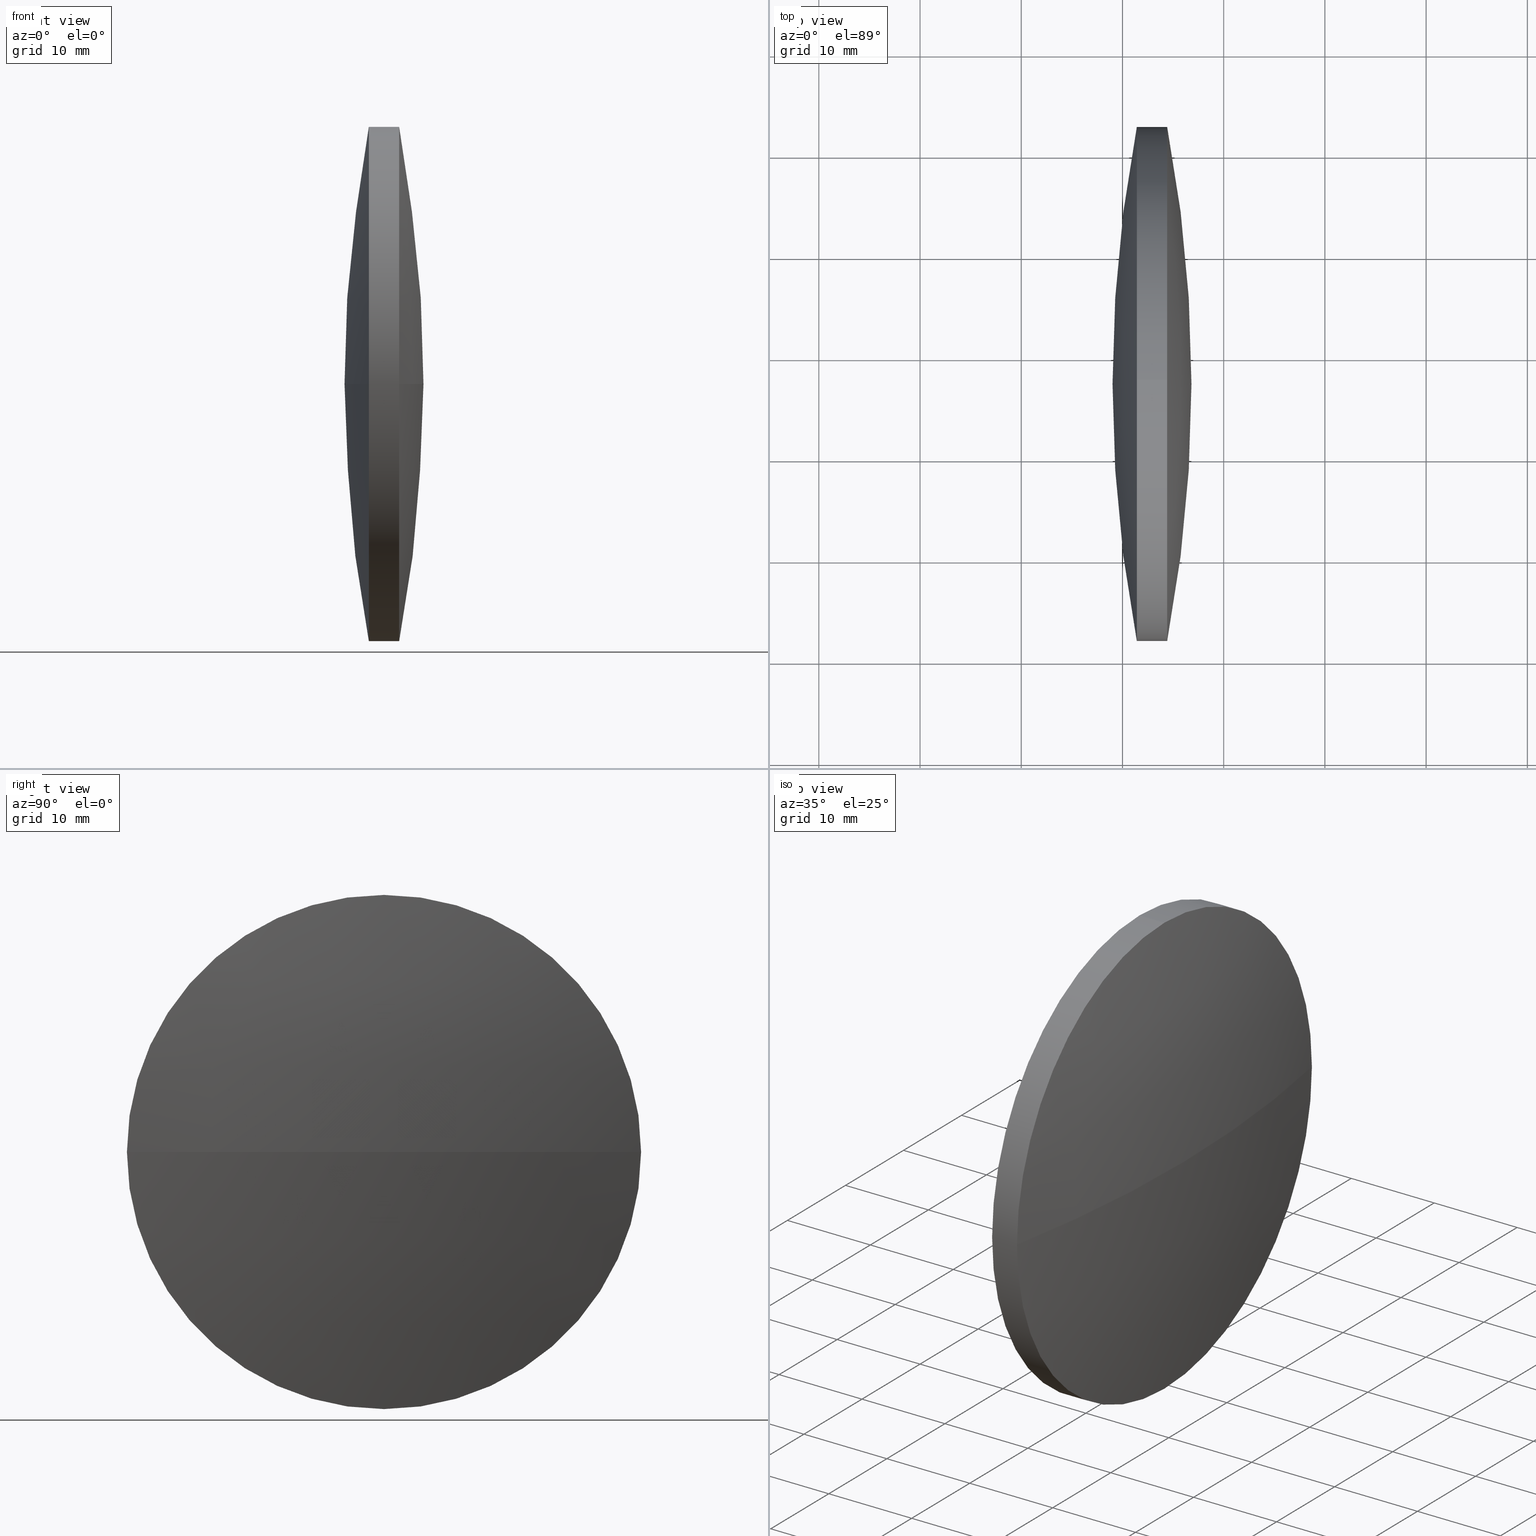
[diagram: canonical four-view strip — front | top / right | iso, engineering-drawing reading convention]
A machine part, canonical four-view strip (front | top / right | iso — engineering-drawing reading convention). The complete STEP part file that produces these views, byte-faithful:
ISO-10303-21;
HEADER;
FILE_DESCRIPTION (( 'STEP AP203' ),
    '1' );
FILE_NAME ('110106.STEP',
    '2019-07-08T08:06:27',
    ( '' ),
    ( '' ),
    'SwSTEP 2.0',
    'SolidWorks 2016',
    '' );
FILE_SCHEMA (( 'CONFIG_CONTROL_DESIGN' ));
ENDSEC;

DATA;
#1 = DIRECTION ( 'NONE',  ( 0.0000000000000000000, 1.000000000000000000, 1.224646799147353200E-016 ) ) ;
#2 = AXIS2_PLACEMENT_3D ( 'NONE', #140, #159, #9 ) ;
#3 = ORIENTED_EDGE ( 'NONE', *, *, #184, .T. ) ;
#4 = CARTESIAN_POINT ( 'NONE',  ( 174.4163664064679400, 71.83222604636907200, -3.110602869834221600E-015 ) ) ;
#5 = CARTESIAN_POINT ( 'NONE',  ( 171.4164086921822200, 97.23222604636956100, 25.39999999999999100 ) ) ;
#6 = PRODUCT_DEFINITION ( 'δ֪', '', #316, #266 ) ;
#7 = CARTESIAN_POINT ( 'NONE',  ( 171.4164086921822200, 97.23222604636956100, 0.0000000000000000000 ) ) ;
#8 = CARTESIAN_POINT ( 'NONE',  ( 171.4164086921822200, 97.23222604636956100, -25.39999999999999100 ) ) ;
#9 = DIRECTION ( 'NONE',  ( 0.0000000000000000000, 0.0000000000000000000, 1.000000000000000000 ) ) ;
#10 = PERSON_AND_ORGANIZATION ( #208, #338 ) ;
#11 = EDGE_CURVE ( 'NONE', #256, #63, #77, .T. ) ;
#12 = DIRECTION ( 'NONE',  ( -0.0000000000000000000, 0.0000000000000000000, -1.000000000000000000 ) ) ;
#13 = CIRCLE ( 'NONE', #55, 25.39999999999999100 ) ;
#14 = CARTESIAN_POINT ( 'NONE',  ( 0.0000000000000000000, 0.0000000000000000000, 0.0000000000000000000 ) ) ;
#15 = PERSON_AND_ORGANIZATION ( #208, #338 ) ;
#16 = DIRECTION ( 'NONE',  ( -0.0000000000000000000, 0.0000000000000000000, -1.000000000000000000 ) ) ;
#17 = CC_DESIGN_PERSON_AND_ORGANIZATION_ASSIGNMENT ( #150, #339, ( #304 ) ) ;
#18 = DIRECTION ( 'NONE',  ( -1.000000000000000000, -0.0000000000000000000, -0.0000000000000000000 ) ) ;
#19 = APPROVAL_PERSON_ORGANIZATION ( #192, #248, #179 ) ;
#20 = PERSON_AND_ORGANIZATION ( #208, #338 ) ;
#21 = ORIENTED_EDGE ( 'NONE', *, *, #314, .T. ) ;
#22 = APPROVAL_DATE_TIME ( #69, #93 ) ;
#23 = CC_DESIGN_PERSON_AND_ORGANIZATION_ASSIGNMENT ( #172, #37, ( #187 ) ) ;
#24 = ADVANCED_FACE ( 'NONE', ( #107 ), #230, .T. ) ;
#25 = DIRECTION ( 'NONE',  ( 0.0000000000000000000, 0.0000000000000000000, 1.000000000000000000 ) ) ;
#26 = AXIS2_PLACEMENT_3D ( 'NONE', #341, #215, #181 ) ;
#27 = ORIENTED_EDGE ( 'NONE', *, *, #224, .T. ) ;
#28 = CC_DESIGN_APPROVAL ( #248, ( #6 ) ) ;
#29 = DATE_AND_TIME ( #92, #59 ) ;
#30 = CALENDAR_DATE ( 2019, 8, 7 ) ;
#31 = CIRCLE ( 'NONE', #75, 25.39999999999999100 ) ;
#32 = ORIENTED_EDGE ( 'NONE', *, *, #218, .F. ) ;
#33 = DIRECTION ( 'NONE',  ( 0.0000000000000000000, 1.224646799147353200E-016, -1.000000000000000000 ) ) ;
#34 = APPROVAL_PERSON_ORGANIZATION ( #99, #93, #289 ) ;
#35 = CIRCLE ( 'NONE', #237, 25.39999999999999100 ) ;
#36 = CC_DESIGN_APPROVAL ( #301, ( #284 ) ) ;
#37 = PERSON_AND_ORGANIZATION_ROLE ( 'classification_officer' ) ;
#38 = AXIS2_PLACEMENT_3D ( 'NONE', #171, #195, #249 ) ;
#39 = ORIENTED_EDGE ( 'NONE', *, *, #232, .T. ) ;
#40 = LOCAL_TIME ( 16, 6, 27.00000000000000000, #325 ) ;
#41 = DIRECTION ( 'NONE',  ( 0.0000000000000000000, 1.000000000000000000, 0.0000000000000000000 ) ) ;
#42 = ORIENTED_EDGE ( 'NONE', *, *, #164, .F. ) ;
#43 = EDGE_CURVE ( 'NONE', #63, #238, #13, .T. ) ;
#44 = CC_DESIGN_SECURITY_CLASSIFICATION ( #187, ( #316 ) ) ;
#45 = ADVANCED_FACE ( 'NONE', ( #148 ), #130, .T. ) ;
#46 = APPROVAL_ROLE ( '' ) ;
#47 = COORDINATED_UNIVERSAL_TIME_OFFSET ( 8, 0, .AHEAD. ) ;
#48 = APPLICATION_PROTOCOL_DEFINITION ( 'international standard', 'config_control_design', 1994, #173 ) ;
#49 = CARTESIAN_POINT ( 'NONE',  ( 171.4164086921822200, 97.23222604636956100, 0.0000000000000000000 ) ) ;
#50 = VERTEX_POINT ( 'NONE', #5 ) ;
#51 = DATE_TIME_ROLE ( 'classification_date' ) ;
#52 = DATE_TIME_ROLE ( 'creation_date' ) ;
#53 = LINE ( 'NONE', #212, #246 ) ;
#54 = DATE_TIME_ROLE ( 'classification_date' ) ;
#55 = AXIS2_PLACEMENT_3D ( 'NONE', #119, #85, #138 ) ;
#56 = CARTESIAN_POINT ( 'NONE',  ( 174.4163664064679400, 97.23222604636956100, -25.39999999999999100 ) ) ;
#57 = APPROVAL_STATUS ( 'not_yet_approved' ) ;
#58 = EDGE_CURVE ( 'NONE', #233, #90, #312, .T. ) ;
#59 = LOCAL_TIME ( 16, 6, 27.00000000000000000, #305 ) ;
#60 = CARTESIAN_POINT ( 'NONE',  ( 176.8163761207535200, 97.23222604636863800, 0.0000000000000000000 ) ) ;
#61 = CIRCLE ( 'NONE', #322, 135.6077941589492500 ) ;
#62 = DIRECTION ( 'NONE',  ( 0.0000000000000000000, 0.0000000000000000000, 1.000000000000000000 ) ) ;
#63 = VERTEX_POINT ( 'NONE', #56 ) ;
#64 = CARTESIAN_POINT ( 'NONE',  ( 165.7441079421506900, 97.23222604636956100, 0.0000000000000000000 ) ) ;
#65 = CARTESIAN_POINT ( 'NONE',  ( 171.4164086921822200, 97.23222604636956100, 0.0000000000000000000 ) ) ;
#66 = CARTESIAN_POINT ( 'NONE',  ( 174.4163664064679400, 97.23222604636956100, 0.0000000000000000000 ) ) ;
#67 = DIRECTION ( 'NONE',  ( 0.0000000000000000000, 1.000000000000000000, 0.0000000000000000000 ) ) ;
#68 = DIRECTION ( 'NONE',  ( -1.000000000000000000, -0.0000000000000000000, -0.0000000000000000000 ) ) ;
#69 = DATE_AND_TIME ( #166, #161 ) ;
#70 = CARTESIAN_POINT ( 'NONE',  ( 165.7441079421506900, 97.23222604636956100, 0.0000000000000000000 ) ) ;
#71 = AXIS2_PLACEMENT_3D ( 'NONE', #70, #178, #205 ) ;
#72 = ORIENTED_EDGE ( 'NONE', *, *, #288, .F. ) ;
#73 = PERSON_AND_ORGANIZATION_ROLE ( 'design_supplier' ) ;
#74 = APPROVAL_STATUS ( 'not_yet_approved' ) ;
#75 = AXIS2_PLACEMENT_3D ( 'NONE', #49, #68, #25 ) ;
#76 = SPHERICAL_SURFACE ( 'NONE', #201, 135.6077941589554100 ) ;
#77 = CIRCLE ( 'NONE', #26, 25.39999999999999100 ) ;
#78 = APPLICATION_PROTOCOL_DEFINITION ( 'international standard', 'config_control_design', 1994, #210 ) ;
#79 = COORDINATED_UNIVERSAL_TIME_OFFSET ( 8, 0, .AHEAD. ) ;
#80 = COORDINATED_UNIVERSAL_TIME_OFFSET ( 8, 0, .AHEAD. ) ;
#81 = ORIENTED_EDGE ( 'NONE', *, *, #164, .T. ) ;
#82 = CC_DESIGN_DATE_AND_TIME_ASSIGNMENT ( #333, #54, ( #187 ) ) ;
#83 = COORDINATED_UNIVERSAL_TIME_OFFSET ( 8, 0, .AHEAD. ) ;
#84 = LOCAL_TIME ( 16, 6, 27.00000000000000000, #255 ) ;
#85 = DIRECTION ( 'NONE',  ( -1.000000000000000000, -0.0000000000000000000, -0.0000000000000000000 ) ) ;
#86 = EDGE_LOOP ( 'NONE', ( #343, #282, #42, #272, #165, #217 ) ) ;
#87 = DESIGN_CONTEXT ( 'detailed design', #285, 'design' ) ;
#88 = DIRECTION ( 'NONE',  ( 0.0000000000000000000, 1.000000000000000000, 0.0000000000000000000 ) ) ;
#89 = CARTESIAN_POINT ( 'NONE',  ( 41.20858196179811000, 97.23222604636862300, 0.0000000000000000000 ) ) ;
#90 = VERTEX_POINT ( 'NONE', #270 ) ;
#91 = AXIS2_PLACEMENT_3D ( 'NONE', #66, #169, #250 ) ;
#92 = CALENDAR_DATE ( 2019, 8, 7 ) ;
#93 = APPROVAL ( #260, 'δָ��' ) ;
#94 = PERSON_AND_ORGANIZATION ( #208, #338 ) ;
#95 = SPHERICAL_SURFACE ( 'NONE', #263, 135.6077941589554100 ) ;
#96 = VERTEX_POINT ( 'NONE', #8 ) ;
#97 = DIRECTION ( 'NONE',  ( 0.0000000000000000000, 0.0000000000000000000, 1.000000000000000000 ) ) ;
#98 = APPROVAL_STATUS ( 'not_yet_approved' ) ;
#99 = PERSON_AND_ORGANIZATION ( #208, #338 ) ;
#100 = ADVANCED_FACE ( 'NONE', ( #269 ), #147, .T. ) ;
#101 = DIRECTION ( 'NONE',  ( 0.0000000000000000000, 0.0000000000000000000, 1.000000000000000000 ) ) ;
#102 = CARTESIAN_POINT ( 'NONE',  ( 171.4164086921822200, 71.83222604636951300, -3.110602869834268200E-015 ) ) ;
#103 = ORIENTED_EDGE ( 'NONE', *, *, #43, .T. ) ;
#104 = APPROVAL_ROLE ( '' ) ;
#105 = EDGE_CURVE ( 'NONE', #226, #256, #251, .T. ) ;
#106 = FACE_OUTER_BOUND ( 'NONE', #86, .T. ) ;
#107 = FACE_OUTER_BOUND ( 'NONE', #155, .T. ) ;
#108 = APPROVAL_STATUS ( 'not_yet_approved' ) ;
#109 = FACE_OUTER_BOUND ( 'NONE', #211, .T. ) ;
#110 = DIRECTION ( 'NONE',  ( 0.0000000000000000000, 1.000000000000000000, 0.0000000000000000000 ) ) ;
#111 = ORIENTED_EDGE ( 'NONE', *, *, #227, .T. ) ;
#112 = SECURITY_CLASSIFICATION_LEVEL ( 'unclassified' ) ;
#113 = DIRECTION ( 'NONE',  ( -1.000000000000000000, -0.0000000000000000000, -0.0000000000000000000 ) ) ;
#114 = PERSON_AND_ORGANIZATION_ROLE ( 'design_supplier' ) ;
#115 = PRODUCT_DEFINITION_SHAPE ( 'NONE', 'NONE',  #6 ) ;
#116 = CARTESIAN_POINT ( 'NONE',  ( 304.6241931368458000, 97.23222604636946200, 0.0000000000000000000 ) ) ;
#117 = APPROVAL_ROLE ( '' ) ;
#118 = CC_DESIGN_APPROVAL ( #290, ( #187 ) ) ;
#119 = CARTESIAN_POINT ( 'NONE',  ( 174.4163664064679400, 97.23222604636956100, 0.0000000000000000000 ) ) ;
#120 = PERSON_AND_ORGANIZATION ( #208, #338 ) ;
#121 = ORIENTED_EDGE ( 'NONE', *, *, #288, .T. ) ;
#122 = ADVANCED_BREP_SHAPE_REPRESENTATION ( '110106', ( #204, #38 ), #257 ) ;
#123 = CC_DESIGN_PERSON_AND_ORGANIZATION_ASSIGNMENT ( #20, #231, ( #202 ) ) ;
#124 =( LENGTH_UNIT ( ) NAMED_UNIT ( * ) SI_UNIT ( .MILLI., .METRE. ) );
#125 = APPROVAL_DATE_TIME ( #190, #290 ) ;
#126 = DIRECTION ( 'NONE',  ( -1.000000000000000000, -0.0000000000000000000, -0.0000000000000000000 ) ) ;
#127 = MECHANICAL_CONTEXT ( 'NONE', #173, 'mechanical' ) ;
#128 = ORIENTED_EDGE ( 'NONE', *, *, #232, .F. ) ;
#129 = APPROVAL_STATUS ( 'not_yet_approved' ) ;
#130 = CYLINDRICAL_SURFACE ( 'NONE', #293, 25.39999999999999100 ) ;
#131 = PERSON_AND_ORGANIZATION_ROLE ( 'creator' ) ;
#132 = DIRECTION ( 'NONE',  ( -0.0000000000000000000, 0.0000000000000000000, -1.000000000000000000 ) ) ;
#133 = PERSON_AND_ORGANIZATION ( #208, #338 ) ;
#134 = AXIS2_PLACEMENT_3D ( 'NONE', #279, #126, #97 ) ;
#135 = FACE_OUTER_BOUND ( 'NONE', #194, .T. ) ;
#136 = PRODUCT_RELATED_PRODUCT_CATEGORY ( 'detail', '', ( #202 ) ) ;
#137 = CARTESIAN_POINT ( 'NONE',  ( 165.7441079421506900, 97.23222604636956100, 25.39999999999999100 ) ) ;
#138 = DIRECTION ( 'NONE',  ( 0.0000000000000000000, 0.0000000000000000000, 1.000000000000000000 ) ) ;
#139 = PERSON_AND_ORGANIZATION ( #208, #338 ) ;
#140 = CARTESIAN_POINT ( 'NONE',  ( 174.4163664064679400, 97.23222604636956100, 0.0000000000000000000 ) ) ;
#141 = APPROVAL_PERSON_ORGANIZATION ( #133, #301, #156 ) ;
#142 = APPROVAL_PERSON_ORGANIZATION ( #10, #332, #104 ) ;
#143 = CLOSED_SHELL ( 'NONE', ( #207, #252, #100, #24, #146, #45 ) ) ;
#144 = LOCAL_TIME ( 16, 6, 27.00000000000000000, #261 ) ;
#145 =( NAMED_UNIT ( * ) SI_UNIT ( $, .STERADIAN. ) SOLID_ANGLE_UNIT ( ) );
#146 = ADVANCED_FACE ( 'NONE', ( #135 ), #95, .T. ) ;
#147 = SPHERICAL_SURFACE ( 'NONE', #280, 135.6077941589492800 ) ;
#148 = FACE_OUTER_BOUND ( 'NONE', #244, .T. ) ;
#149 = DATE_TIME_ROLE ( 'creation_date' ) ;
#150 = PERSON_AND_ORGANIZATION ( #208, #338 ) ;
#151 = CC_DESIGN_PERSON_AND_ORGANIZATION_ASSIGNMENT ( #209, #114, ( #316 ) ) ;
#152 = MECHANICAL_CONTEXT ( 'NONE', #177, 'mechanical' ) ;
#153 = PERSON_AND_ORGANIZATION ( #208, #338 ) ;
#154 = CIRCLE ( 'NONE', #234, 25.39999999999999100 ) ;
#155 = EDGE_LOOP ( 'NONE', ( #307, #21, #3, #111 ) ) ;
#156 = APPROVAL_ROLE ( '' ) ;
#157 = CALENDAR_DATE ( 2019, 8, 7 ) ;
#158 = COORDINATED_UNIVERSAL_TIME_OFFSET ( 8, 0, .AHEAD. ) ;
#159 = DIRECTION ( 'NONE',  ( -1.000000000000000000, -0.0000000000000000000, -0.0000000000000000000 ) ) ;
#160 = ORIENTED_EDGE ( 'NONE', *, *, #227, .F. ) ;
#161 = LOCAL_TIME ( 16, 6, 27.00000000000000000, #240 ) ;
#162 = DIRECTION ( 'NONE',  ( -1.000000000000000000, -0.0000000000000000000, -0.0000000000000000000 ) ) ;
#163 = DATE_AND_TIME ( #235, #318 ) ;
#164 = EDGE_CURVE ( 'NONE', #299, #96, #243, .T. ) ;
#165 = ORIENTED_EDGE ( 'NONE', *, *, #224, .F. ) ;
#166 = CALENDAR_DATE ( 2019, 8, 7 ) ;
#167 = CALENDAR_DATE ( 2019, 8, 7 ) ;
#168 = CIRCLE ( 'NONE', #91, 25.39999999999999100 ) ;
#169 = DIRECTION ( 'NONE',  ( -1.000000000000000000, -0.0000000000000000000, -0.0000000000000000000 ) ) ;
#170 = CIRCLE ( 'NONE', #2, 25.39999999999999100 ) ;
#171 = CARTESIAN_POINT ( 'NONE',  ( 0.0000000000000000000, 0.0000000000000000000, 0.0000000000000000000 ) ) ;
#172 = PERSON_AND_ORGANIZATION ( #208, #338 ) ;
#173 = APPLICATION_CONTEXT ( 'configuration controlled 3d designs of mechanical parts and assemblies' ) ;
#174 = PERSON_AND_ORGANIZATION_ROLE ( 'creator' ) ;
#175 = CYLINDRICAL_SURFACE ( 'NONE', #71, 25.39999999999999100 ) ;
#176 = VERTEX_POINT ( 'NONE', #331 ) ;
#177 = APPLICATION_CONTEXT ( 'configuration controlled 3d designs of mechanical parts and assemblies' ) ;
#178 = DIRECTION ( 'NONE',  ( -1.000000000000000000, -0.0000000000000000000, -0.0000000000000000000 ) ) ;
#179 = APPROVAL_ROLE ( '' ) ;
#180 = LINE ( 'NONE', #137, #298 ) ;
#181 = DIRECTION ( 'NONE',  ( 0.0000000000000000000, 0.0000000000000000000, 1.000000000000000000 ) ) ;
#182 = APPROVAL_DATE_TIME ( #321, #248 ) ;
#183 = ORIENTED_EDGE ( 'NONE', *, *, #223, .F. ) ;
#184 = EDGE_CURVE ( 'NONE', #50, #299, #31, .T. ) ;
#185 = DIRECTION ( 'NONE',  ( 1.000000000000000000, 0.0000000000000000000, 0.0000000000000000000 ) ) ;
#186 = DATE_AND_TIME ( #167, #264 ) ;
#187 = SECURITY_CLASSIFICATION ( '', '', #112 ) ;
#188 = CARTESIAN_POINT ( 'NONE',  ( 171.4164086921822200, 122.6322260463695000, 0.0000000000000000000 ) ) ;
#189 = DIRECTION ( 'NONE',  ( 0.0000000000000000000, 1.000000000000000000, 1.224646799147352700E-016 ) ) ;
#190 = DATE_AND_TIME ( #287, #144 ) ;
#191 = DIRECTION ( 'NONE',  ( 0.0000000000000000000, 1.224646799147353200E-016, -1.000000000000000000 ) ) ;
#192 = PERSON_AND_ORGANIZATION ( #208, #338 ) ;
#193 = SHAPE_DEFINITION_REPRESENTATION ( #115, #122 ) ;
#194 = EDGE_LOOP ( 'NONE', ( #32, #247, #313, #72 ) ) ;
#195 = DIRECTION ( 'NONE',  ( 0.0000000000000000000, 0.0000000000000000000, 1.000000000000000000 ) ) ;
#196 = CALENDAR_DATE ( 2019, 8, 7 ) ;
#197 = DIRECTION ( 'NONE',  ( -0.0000000000000000000, 0.0000000000000000000, -1.000000000000000000 ) ) ;
#198 = DIRECTION ( 'NONE',  ( 0.0000000000000000000, 0.0000000000000000000, 1.000000000000000000 ) ) ;
#199 = DATE_AND_TIME ( #242, #315 ) ;
#200 = DATE_AND_TIME ( #220, #84 ) ;
#201 = AXIS2_PLACEMENT_3D ( 'NONE', #320, #12, #41 ) ;
#202 = PRODUCT ( '110106', '110106', '', ( #127 ) ) ;
#203 = APPROVAL_PERSON_ORGANIZATION ( #139, #290, #117 ) ;
#204 = MANIFOLD_SOLID_BREP ( '��ת1', #143 ) ;
#205 = DIRECTION ( 'NONE',  ( 0.0000000000000000000, 0.0000000000000000000, 1.000000000000000000 ) ) ;
#206 = AXIS2_PLACEMENT_3D ( 'NONE', #273, #276, #302 ) ;
#207 = ADVANCED_FACE ( 'NONE', ( #106 ), #175, .T. ) ;
#208 = PERSON ( 'δָ��', 'δָ��', 'δָ��', ('δָ��'), ('δָ��'), ('δָ��') ) ;
#209 = PERSON_AND_ORGANIZATION ( #208, #338 ) ;
#210 = APPLICATION_CONTEXT ( 'configuration controlled 3d designs of mechanical parts and assemblies' ) ;
#211 = EDGE_LOOP ( 'NONE', ( #336, #277, #300, #286 ) ) ;
#212 = CARTESIAN_POINT ( 'NONE',  ( 165.7441079421506900, 97.23222604636956100, -25.39999999999999100 ) ) ;
#213 = LOCAL_TIME ( 16, 6, 27.00000000000000000, #79 ) ;
#214 = CARTESIAN_POINT ( 'NONE',  ( 304.6241931368458000, 97.23222604636946200, 0.0000000000000000000 ) ) ;
#215 = DIRECTION ( 'NONE',  ( -1.000000000000000000, -0.0000000000000000000, -0.0000000000000000000 ) ) ;
#216 = CARTESIAN_POINT ( 'NONE',  ( 304.6241931368458000, 97.23222604636946200, 0.0000000000000000000 ) ) ;
#217 = ORIENTED_EDGE ( 'NONE', *, *, #268, .T. ) ;
#218 = EDGE_CURVE ( 'NONE', #226, #238, #265, .T. ) ;
#219 = CARTESIAN_POINT ( 'NONE',  ( 174.4163664064679400, 122.6322260463691100, 0.0000000000000000000 ) ) ;
#220 = CALENDAR_DATE ( 2019, 8, 7 ) ;
#221 = EDGE_LOOP ( 'NONE', ( #81, #39, #328, #160 ) ) ;
#222 = DIRECTION ( 'NONE',  ( 0.0000000000000000000, 0.0000000000000000000, 1.000000000000000000 ) ) ;
#223 = EDGE_CURVE ( 'NONE', #63, #96, #53, .T. ) ;
#224 = EDGE_CURVE ( 'NONE', #176, #50, #180, .T. ) ;
#225 = APPROVAL_PERSON_ORGANIZATION ( #94, #259, #46 ) ;
#226 = VERTEX_POINT ( 'NONE', #60 ) ;
#227 = EDGE_CURVE ( 'NONE', #299, #90, #61, .T. ) ;
#228 = PERSON_AND_ORGANIZATION_ROLE ( 'creator' ) ;
#229 = CC_DESIGN_APPROVAL ( #259, ( #310 ) ) ;
#230 = SPHERICAL_SURFACE ( 'NONE', #274, 135.6077941589492800 ) ;
#231 = PERSON_AND_ORGANIZATION_ROLE ( 'design_owner' ) ;
#232 = EDGE_CURVE ( 'NONE', #96, #233, #154, .T. ) ;
#233 = VERTEX_POINT ( 'NONE', #102 ) ;
#234 = AXIS2_PLACEMENT_3D ( 'NONE', #7, #162, #62 ) ;
#235 = CALENDAR_DATE ( 2019, 8, 7 ) ;
#236 = UNCERTAINTY_MEASURE_WITH_UNIT (LENGTH_MEASURE( 1.000000000000000100E-005 ), #124, 'distance_accuracy_value', 'NONE');
#237 = AXIS2_PLACEMENT_3D ( 'NONE', #65, #18, #198 ) ;
#238 = VERTEX_POINT ( 'NONE', #4 ) ;
#239 = DIRECTION ( 'NONE',  ( -0.0000000000000000000, 0.0000000000000000000, 1.000000000000000000 ) ) ;
#240 = COORDINATED_UNIVERSAL_TIME_OFFSET ( 8, 0, .AHEAD. ) ;
#241 = PRODUCT_DEFINITION_FORMATION_WITH_SPECIFIED_SOURCE ( '�κ�', '', #202, .NOT_KNOWN. ) ;
#242 = CALENDAR_DATE ( 2019, 8, 7 ) ;
#243 = CIRCLE ( 'NONE', #134, 25.39999999999999100 ) ;
#244 = EDGE_LOOP ( 'NONE', ( #183, #103, #121, #27, #294, #128 ) ) ;
#245 = APPROVAL_DATE_TIME ( #199, #332 ) ;
#246 = VECTOR ( 'NONE', #292, 1000.000000000000000 ) ;
#247 = ORIENTED_EDGE ( 'NONE', *, *, #105, .T. ) ;
#248 = APPROVAL ( #108, 'δָ��' ) ;
#249 = DIRECTION ( 'NONE',  ( 1.000000000000000000, 0.0000000000000000000, 0.0000000000000000000 ) ) ;
#250 = DIRECTION ( 'NONE',  ( 0.0000000000000000000, 0.0000000000000000000, 1.000000000000000000 ) ) ;
#251 = CIRCLE ( 'NONE', #206, 135.6077941589554100 ) ;
#252 = ADVANCED_FACE ( 'NONE', ( #109 ), #76, .T. ) ;
#253 = CC_DESIGN_PERSON_AND_ORGANIZATION_ASSIGNMENT ( #311, #73, ( #241 ) ) ;
#254 = DIRECTION ( 'NONE',  ( 1.000000000000000000, 0.0000000000000000000, 0.0000000000000000000 ) ) ;
#255 = COORDINATED_UNIVERSAL_TIME_OFFSET ( 8, 0, .AHEAD. ) ;
#256 = VERTEX_POINT ( 'NONE', #219 ) ;
#257 =( GEOMETRIC_REPRESENTATION_CONTEXT ( 3 ) GLOBAL_UNCERTAINTY_ASSIGNED_CONTEXT ( ( #236 ) ) GLOBAL_UNIT_ASSIGNED_CONTEXT ( ( #124, #329, #145 ) ) REPRESENTATION_CONTEXT ( 'NONE', 'WORKASPACE' ) );
#258 = PERSON_AND_ORGANIZATION_ROLE ( 'classification_officer' ) ;
#259 = APPROVAL ( #98, 'δָ��' ) ;
#260 = APPROVAL_STATUS ( 'not_yet_approved' ) ;
#261 = COORDINATED_UNIVERSAL_TIME_OFFSET ( 8, 0, .AHEAD. ) ;
#262 = SECURITY_CLASSIFICATION_LEVEL ( 'unclassified' ) ;
#263 = AXIS2_PLACEMENT_3D ( 'NONE', #89, #16, #88 ) ;
#264 = LOCAL_TIME ( 16, 6, 27.00000000000000000, #83 ) ;
#265 = CIRCLE ( 'NONE', #330, 135.6077941589554100 ) ;
#266 = DESIGN_CONTEXT ( 'detailed design', #210, 'design' ) ;
#267 = CC_DESIGN_APPROVAL ( #93, ( #316 ) ) ;
#268 = EDGE_CURVE ( 'NONE', #176, #256, #170, .T. ) ;
#269 = FACE_OUTER_BOUND ( 'NONE', #221, .T. ) ;
#270 = CARTESIAN_POINT ( 'NONE',  ( 169.0163989778965300, 97.23222604636946200, 0.0000000000000000000 ) ) ;
#271 = CC_DESIGN_SECURITY_CLASSIFICATION ( #284, ( #241 ) ) ;
#272 = ORIENTED_EDGE ( 'NONE', *, *, #184, .F. ) ;
#273 = CARTESIAN_POINT ( 'NONE',  ( 41.20858196179811000, 97.23222604636862300, 0.0000000000000000000 ) ) ;
#274 = AXIS2_PLACEMENT_3D ( 'NONE', #216, #132, #110 ) ;
#275 = DATE_AND_TIME ( #30, #283 ) ;
#276 = DIRECTION ( 'NONE',  ( -0.0000000000000000000, 0.0000000000000000000, 1.000000000000000000 ) ) ;
#277 = ORIENTED_EDGE ( 'NONE', *, *, #218, .T. ) ;
#278 = CC_DESIGN_PERSON_AND_ORGANIZATION_ASSIGNMENT ( #120, #344, ( #6 ) ) ;
#279 = CARTESIAN_POINT ( 'NONE',  ( 171.4164086921822200, 97.23222604636956100, 0.0000000000000000000 ) ) ;
#280 = AXIS2_PLACEMENT_3D ( 'NONE', #306, #197, #67 ) ;
#281 = PERSON_AND_ORGANIZATION ( #208, #338 ) ;
#282 = ORIENTED_EDGE ( 'NONE', *, *, #223, .T. ) ;
#283 = LOCAL_TIME ( 16, 6, 27.00000000000000000, #80 ) ;
#284 = SECURITY_CLASSIFICATION ( '', '', #262 ) ;
#285 = APPLICATION_CONTEXT ( 'configuration controlled 3d designs of mechanical parts and assemblies' ) ;
#286 = ORIENTED_EDGE ( 'NONE', *, *, #11, .F. ) ;
#287 = CALENDAR_DATE ( 2019, 8, 7 ) ;
#288 = EDGE_CURVE ( 'NONE', #238, #176, #168, .T. ) ;
#289 = APPROVAL_ROLE ( '' ) ;
#290 = APPROVAL ( #57, 'δָ��' ) ;
#291 = CC_DESIGN_PERSON_AND_ORGANIZATION_ASSIGNMENT ( #153, #174, ( #310 ) ) ;
#292 = DIRECTION ( 'NONE',  ( -1.000000000000000000, -0.0000000000000000000, -0.0000000000000000000 ) ) ;
#293 = AXIS2_PLACEMENT_3D ( 'NONE', #64, #324, #222 ) ;
#294 = ORIENTED_EDGE ( 'NONE', *, *, #314, .F. ) ;
#295 = CC_DESIGN_PERSON_AND_ORGANIZATION_ASSIGNMENT ( #296, #258, ( #284 ) ) ;
#296 = PERSON_AND_ORGANIZATION ( #208, #338 ) ;
#297 = APPROVAL_DATE_TIME ( #275, #259 ) ;
#298 = VECTOR ( 'NONE', #113, 1000.000000000000000 ) ;
#299 = VERTEX_POINT ( 'NONE', #188 ) ;
#300 = ORIENTED_EDGE ( 'NONE', *, *, #43, .F. ) ;
#301 = APPROVAL ( #74, 'δָ��' ) ;
#302 = DIRECTION ( 'NONE',  ( 1.000000000000000000, 0.0000000000000000000, 0.0000000000000000000 ) ) ;
#303 = AXIS2_PLACEMENT_3D ( 'NONE', #14, #101, #254 ) ;
#304 = PRODUCT ( '110106', '110106', '', ( #152 ) ) ;
#305 = COORDINATED_UNIVERSAL_TIME_OFFSET ( 8, 0, .AHEAD. ) ;
#306 = CARTESIAN_POINT ( 'NONE',  ( 304.6241931368458000, 97.23222604636946200, 0.0000000000000000000 ) ) ;
#307 = ORIENTED_EDGE ( 'NONE', *, *, #58, .F. ) ;
#308 = CC_DESIGN_APPROVAL ( #332, ( #241 ) ) ;
#309 = APPLICATION_PROTOCOL_DEFINITION ( 'international standard', 'config_control_design', 1994, #285 ) ;
#310 = PRODUCT_DEFINITION ( 'δ֪', '', #241, #87 ) ;
#311 = PERSON_AND_ORGANIZATION ( #208, #338 ) ;
#312 = CIRCLE ( 'NONE', #334, 135.6077941589493000 ) ;
#313 = ORIENTED_EDGE ( 'NONE', *, *, #268, .F. ) ;
#314 = EDGE_CURVE ( 'NONE', #233, #50, #35, .T. ) ;
#315 = LOCAL_TIME ( 16, 6, 27.00000000000000000, #158 ) ;
#316 = PRODUCT_DEFINITION_FORMATION_WITH_SPECIFIED_SOURCE ( '�κ�', '', #304, .NOT_KNOWN. ) ;
#317 = CARTESIAN_POINT ( 'NONE',  ( 41.20858196179811000, 97.23222604636862300, 0.0000000000000000000 ) ) ;
#318 = LOCAL_TIME ( 16, 6, 27.00000000000000000, #47 ) ;
#319 = CC_DESIGN_DATE_AND_TIME_ASSIGNMENT ( #163, #52, ( #6 ) ) ;
#320 = CARTESIAN_POINT ( 'NONE',  ( 41.20858196179811000, 97.23222604636862300, 0.0000000000000000000 ) ) ;
#321 = DATE_AND_TIME ( #157, #40 ) ;
#322 = AXIS2_PLACEMENT_3D ( 'NONE', #214, #239, #185 ) ;
#323 = CC_DESIGN_PERSON_AND_ORGANIZATION_ASSIGNMENT ( #281, #228, ( #241 ) ) ;
#324 = DIRECTION ( 'NONE',  ( -1.000000000000000000, -0.0000000000000000000, -0.0000000000000000000 ) ) ;
#325 = COORDINATED_UNIVERSAL_TIME_OFFSET ( 8, 0, .AHEAD. ) ;
#326 = PRODUCT_DEFINITION_SHAPE ( 'NONE', 'NONE',  #310 ) ;
#327 = CC_DESIGN_DATE_AND_TIME_ASSIGNMENT ( #186, #51, ( #284 ) ) ;
#328 = ORIENTED_EDGE ( 'NONE', *, *, #58, .T. ) ;
#329 =( NAMED_UNIT ( * ) PLANE_ANGLE_UNIT ( ) SI_UNIT ( $, .RADIAN. ) );
#330 = AXIS2_PLACEMENT_3D ( 'NONE', #317, #33, #1 ) ;
#331 = CARTESIAN_POINT ( 'NONE',  ( 174.4163664064679400, 97.23222604636956100, 25.39999999999999100 ) ) ;
#332 = APPROVAL ( #129, 'δָ��' ) ;
#333 = DATE_AND_TIME ( #196, #213 ) ;
#334 = AXIS2_PLACEMENT_3D ( 'NONE', #116, #191, #189 ) ;
#335 = APPROVAL_DATE_TIME ( #29, #301 ) ;
#336 = ORIENTED_EDGE ( 'NONE', *, *, #105, .F. ) ;
#337 = PRODUCT_RELATED_PRODUCT_CATEGORY ( 'detail', '', ( #304 ) ) ;
#338 = ORGANIZATION ( 'δָ��', 'δָ��', '' ) ;
#339 = PERSON_AND_ORGANIZATION_ROLE ( 'design_owner' ) ;
#340 = CC_DESIGN_PERSON_AND_ORGANIZATION_ASSIGNMENT ( #15, #131, ( #316 ) ) ;
#341 = CARTESIAN_POINT ( 'NONE',  ( 174.4163664064679400, 97.23222604636956100, 0.0000000000000000000 ) ) ;
#342 = APPLICATION_PROTOCOL_DEFINITION ( 'international standard', 'config_control_design', 1994, #177 ) ;
#343 = ORIENTED_EDGE ( 'NONE', *, *, #11, .T. ) ;
#344 = PERSON_AND_ORGANIZATION_ROLE ( 'creator' ) ;
#345 = CC_DESIGN_DATE_AND_TIME_ASSIGNMENT ( #200, #149, ( #310 ) ) ;
ENDSEC;
END-ISO-10303-21;
